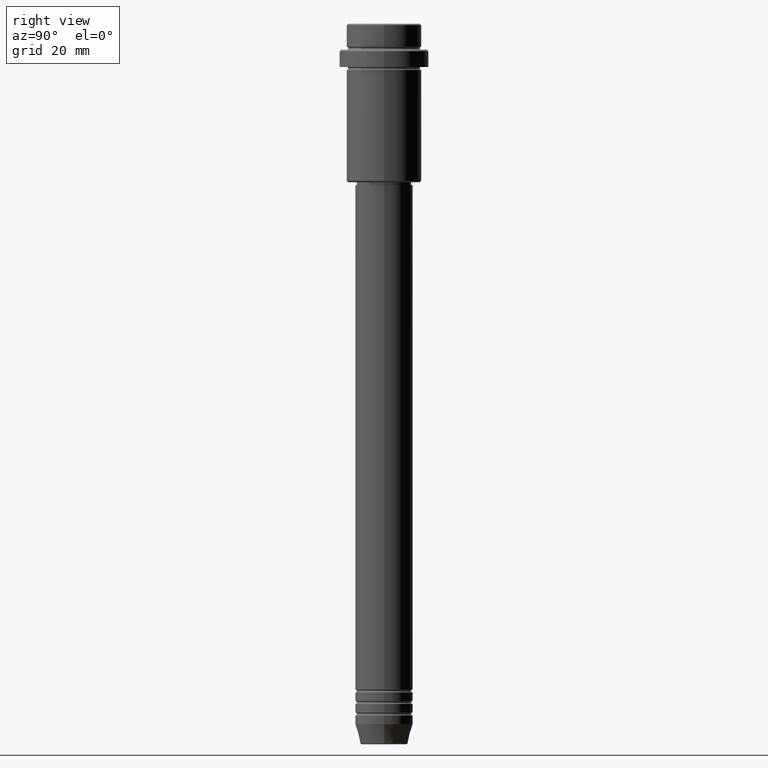
[diagram: clean part render]
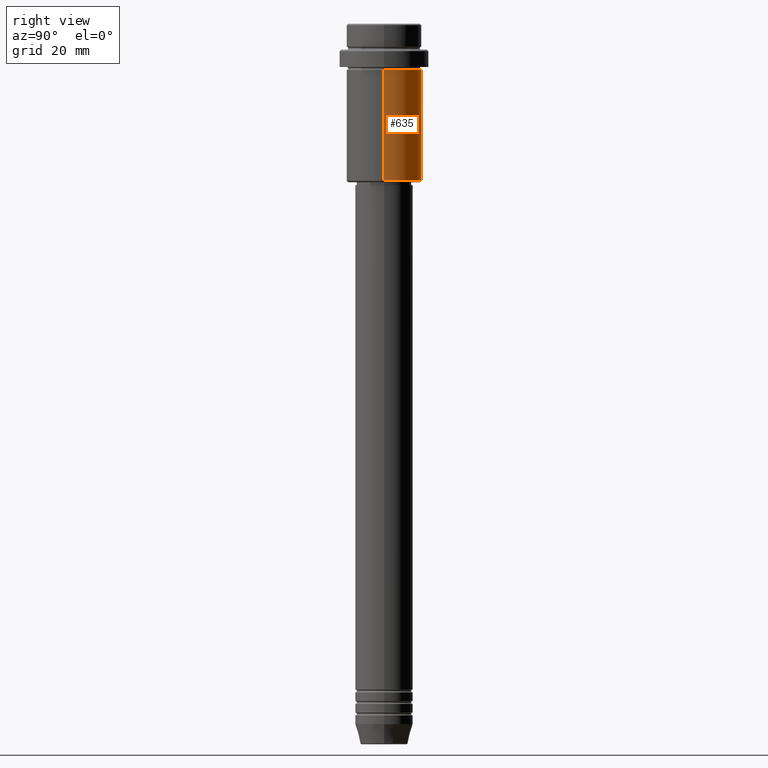
[diagram: same view with one face highlighted and labeled with its STEP entity id]
A machine part, right view. The second image highlights one B-rep face of the part: STEP entity #635.
In plain terms, the highlighted cylindrical surface (partial cylindrical patch) has radius 13 mm, axis along (-0, -0, 1).
Its self-contained STEP definition (entity closure, byte-faithful):
#9 = LINE ( 'NONE', #744, #1200 ) ;
#112 = DIRECTION ( 'NONE',  ( -0.000000000000000000, -0.000000000000000000, 1.000000000000000000 ) ) ;
#114 = ORIENTED_EDGE ( 'NONE', *, *, #1316, .F. ) ;
#129 = AXIS2_PLACEMENT_3D ( 'NONE', #1282, #1410, #636 ) ;
#153 = EDGE_CURVE ( 'NONE', #266, #525, #202, .T. ) ;
#202 = LINE ( 'NONE', #331, #1289 ) ;
#213 = AXIS2_PLACEMENT_3D ( 'NONE', #923, #1346, #700 ) ;
#266 = VERTEX_POINT ( 'NONE', #1025 ) ;
#327 = CARTESIAN_POINT ( 'NONE',  ( 0.000000000000000000, 0.000000000000000000, 0.000000000000000000 ) ) ;
#331 = CARTESIAN_POINT ( 'NONE',  ( 13.00000000000000000, 0.000000000000000000, 0.000000000000000000 ) ) ;
#337 = CARTESIAN_POINT ( 'NONE',  ( -13.00000000000000000, 1.592040838891559095E-15, -54.50000000000000000 ) ) ;
#359 = EDGE_CURVE ( 'NONE', #266, #1238, #597, .T. ) ;
#367 = AXIS2_PLACEMENT_3D ( 'NONE', #327, #112, #417 ) ;
#380 = CARTESIAN_POINT ( 'NONE',  ( 13.00000000000000000, 0.000000000000000000, -16.00000000000000000 ) ) ;
#417 = DIRECTION ( 'NONE',  ( 1.000000000000000000, 0.000000000000000000, 0.000000000000000000 ) ) ;
#525 = VERTEX_POINT ( 'NONE', #380 ) ;
#569 = CARTESIAN_POINT ( 'NONE',  ( -13.00000000000000000, 1.592040838891559095E-15, -16.00000000000000000 ) ) ;
#597 = CIRCLE ( 'NONE', #213, 13.00000000000000000 ) ;
#635 = ADVANCED_FACE ( 'NONE', ( #1313 ), #968, .T. ) ;
#636 = DIRECTION ( 'NONE',  ( 1.000000000000000000, 0.000000000000000000, 0.000000000000000000 ) ) ;
#683 = ORIENTED_EDGE ( 'NONE', *, *, #153, .F. ) ;
#700 = DIRECTION ( 'NONE',  ( -1.000000000000000000, 0.000000000000000000, 0.000000000000000000 ) ) ;
#744 = CARTESIAN_POINT ( 'NONE',  ( -13.00000000000000000, 1.592040838891559095E-15, 0.000000000000000000 ) ) ;
#864 = VERTEX_POINT ( 'NONE', #569 ) ;
#917 = ORIENTED_EDGE ( 'NONE', *, *, #1078, .T. ) ;
#923 = CARTESIAN_POINT ( 'NONE',  ( 0.000000000000000000, 0.000000000000000000, -54.50000000000000000 ) ) ;
#968 = CYLINDRICAL_SURFACE ( 'NONE', #367, 13.00000000000000000 ) ;
#997 = DIRECTION ( 'NONE',  ( -0.000000000000000000, -0.000000000000000000, 1.000000000000000000 ) ) ;
#1023 = CIRCLE ( 'NONE', #129, 13.00000000000000000 ) ;
#1025 = CARTESIAN_POINT ( 'NONE',  ( 13.00000000000000000, 0.000000000000000000, -54.50000000000000000 ) ) ;
#1078 = EDGE_CURVE ( 'NONE', #1238, #864, #9, .T. ) ;
#1086 = EDGE_LOOP ( 'NONE', ( #1274, #917, #114, #683 ) ) ;
#1200 = VECTOR ( 'NONE', #1413, 1000.000000000000000 ) ;
#1238 = VERTEX_POINT ( 'NONE', #337 ) ;
#1274 = ORIENTED_EDGE ( 'NONE', *, *, #359, .T. ) ;
#1282 = CARTESIAN_POINT ( 'NONE',  ( 0.000000000000000000, 0.000000000000000000, -16.00000000000000000 ) ) ;
#1289 = VECTOR ( 'NONE', #997, 1000.000000000000000 ) ;
#1313 = FACE_OUTER_BOUND ( 'NONE', #1086, .T. ) ;
#1316 = EDGE_CURVE ( 'NONE', #525, #864, #1023, .T. ) ;
#1346 = DIRECTION ( 'NONE',  ( -0.000000000000000000, -0.000000000000000000, 1.000000000000000000 ) ) ;
#1410 = DIRECTION ( 'NONE',  ( -0.000000000000000000, -0.000000000000000000, 1.000000000000000000 ) ) ;
#1413 = DIRECTION ( 'NONE',  ( -0.000000000000000000, -0.000000000000000000, 1.000000000000000000 ) ) ;